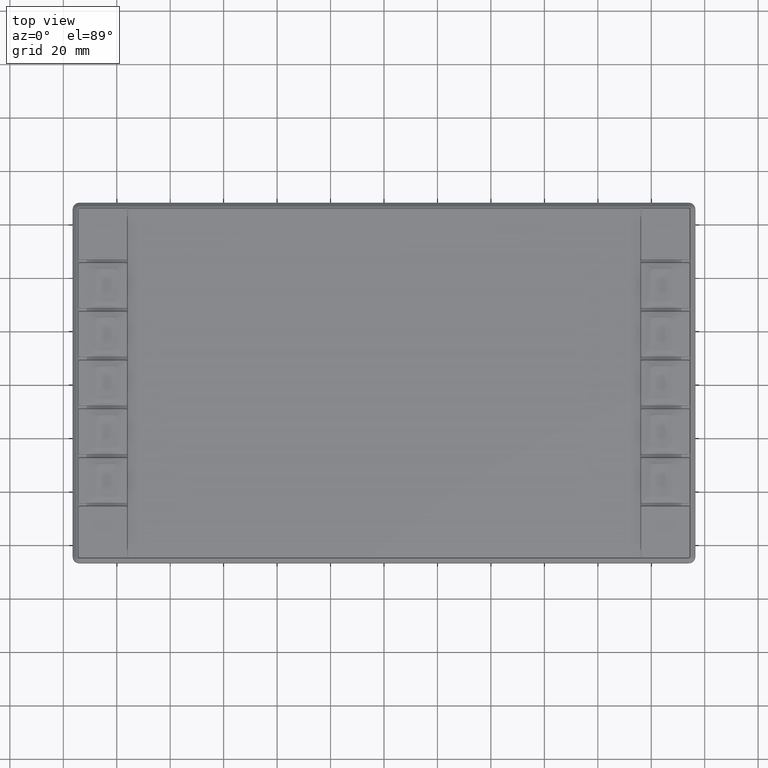
[diagram: clean part render]
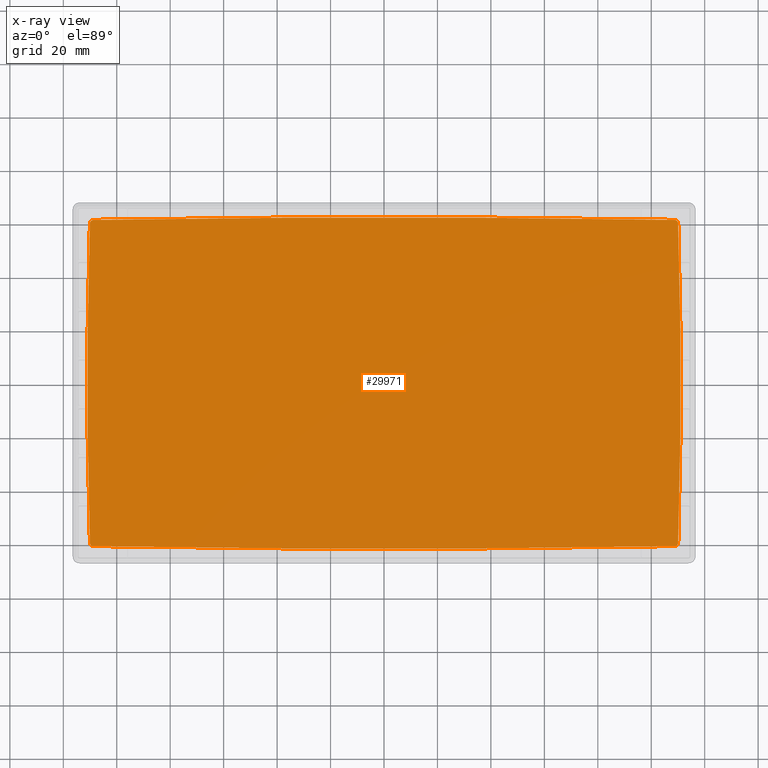
[diagram: x-ray — body ghosted, one internal face saturated and labeled with its STEP entity id]
A machine part, top view, then the same camera in x-ray: the body is ghosted and one INTERNAL B-rep face — a face not visible from any outside direction — is saturated and labeled: STEP entity #29971.
In plain terms, the highlighted planar face has unit normal (0, 0, 1).
Its self-contained STEP definition (entity closure, byte-faithful):
#1877=CIRCLE('',#35961,1921.4999618986);
#1878=CIRCLE('',#35962,6159.9999619214);
#1879=CIRCLE('',#35963,1921.49996189857);
#1880=CIRCLE('',#35964,6159.99996192157);
#8346=PLANE('',#35960);
#12553=ORIENTED_EDGE('',*,*,#19478,.T.);
#12554=ORIENTED_EDGE('',*,*,#19479,.T.);
#12555=ORIENTED_EDGE('',*,*,#19480,.T.);
#12556=ORIENTED_EDGE('',*,*,#19481,.T.);
#12557=ORIENTED_EDGE('',*,*,#19482,.T.);
#12558=ORIENTED_EDGE('',*,*,#19483,.T.);
#12559=ORIENTED_EDGE('',*,*,#19484,.T.);
#12560=ORIENTED_EDGE('',*,*,#19485,.T.);
#19478=EDGE_CURVE('',#23161,#23162,#1877,.F.);
#19479=EDGE_CURVE('',#23162,#23163,#24987,.T.);
#19480=EDGE_CURVE('',#23163,#23164,#1878,.F.);
#19481=EDGE_CURVE('',#23164,#23165,#24988,.T.);
#19482=EDGE_CURVE('',#23165,#23166,#1879,.F.);
#19483=EDGE_CURVE('',#23166,#23167,#24989,.T.);
#19484=EDGE_CURVE('',#23167,#23168,#1880,.F.);
#19485=EDGE_CURVE('',#23168,#23161,#24990,.T.);
#23161=VERTEX_POINT('',#51800);
#23162=VERTEX_POINT('',#51801);
#23163=VERTEX_POINT('',#51807);
#23164=VERTEX_POINT('',#51809);
#23165=VERTEX_POINT('',#51815);
#23166=VERTEX_POINT('',#51817);
#23167=VERTEX_POINT('',#51823);
#23168=VERTEX_POINT('',#51825);
#24987=B_SPLINE_CURVE_WITH_KNOTS('',3,(#51802,#51803,#51804,#51805,#51806),
 .UNSPECIFIED.,.F.,.F.,(4,1,4),(0.00809554462968181,0.00909241375554434,
0.0100892828814069),.UNSPECIFIED.);
#24988=B_SPLINE_CURVE_WITH_KNOTS('',3,(#51810,#51811,#51812,#51813,#51814),
 .UNSPECIFIED.,.F.,.F.,(4,1,4),(0.00809554767599426,0.00909241681708208,
0.0100892859581699),.UNSPECIFIED.);
#24989=B_SPLINE_CURVE_WITH_KNOTS('',3,(#51818,#51819,#51820,#51821,#51822),
 .UNSPECIFIED.,.F.,.F.,(4,1,4),(0.00809554462974763,0.00909241375561033,
0.010089282881473),.UNSPECIFIED.);
#24990=B_SPLINE_CURVE_WITH_KNOTS('',3,(#51826,#51827,#51828,#51829,#51830),
 .UNSPECIFIED.,.F.,.F.,(4,1,4),(0.00809554767600796,0.00909241681709735,
0.0100892859581867),.UNSPECIFIED.);
#25975=EDGE_LOOP('',(#12553,#12554,#12555,#12556,#12557,#12558,#12559,#12560));
#27971=FACE_BOUND('',#25975,.T.);
#29971=ADVANCED_FACE('',(#27971),#8346,.T.);
#35960=AXIS2_PLACEMENT_3D('',#51798,#41321,#41322);
#35961=AXIS2_PLACEMENT_3D('',#51799,#41323,#41324);
#35962=AXIS2_PLACEMENT_3D('',#51808,#41325,#41326);
#35963=AXIS2_PLACEMENT_3D('',#51816,#41327,#41328);
#35964=AXIS2_PLACEMENT_3D('',#51824,#41329,#41330);
#41321=DIRECTION('',(0.,0.,1.));
#41322=DIRECTION('',(1.,0.,0.));
#41323=DIRECTION('',(0.,0.,-1.));
#41324=DIRECTION('',(1.,0.,0.));
#41325=DIRECTION('',(0.,0.,-1.));
#41326=DIRECTION('',(1.,0.,0.));
#41327=DIRECTION('',(0.,0.,-1.));
#41328=DIRECTION('',(1.,0.,0.));
#41329=DIRECTION('',(0.,0.,-1.));
#41330=DIRECTION('',(1.,0.,0.));
#51798=CARTESIAN_POINT('',(0.,0.,-1.7));
#51799=CARTESIAN_POINT('',(1810.49999997698,0.,-1.7));
#51800=CARTESIAN_POINT('',(-110.069829834837,59.7798662298914,-1.70000000000003));
#51801=CARTESIAN_POINT('',(-110.069829831312,-59.779866229782,-1.7));
#51802=CARTESIAN_POINT('',(-110.069829834837,-59.7798662298922,-1.69999999999999));
#51803=CARTESIAN_POINT('',(-110.059470488397,-60.1126851075122,-1.69999999999999));
#51804=CARTESIAN_POINT('',(-109.775985160913,-60.7573732275118,-1.70000000000004));
#51805=CARTESIAN_POINT('',(-109.120951093956,-61.0333865180379,-1.69999999999997));
#51806=CARTESIAN_POINT('',(-108.793467366082,-61.0391711972182,-1.69999999999996));
#51807=CARTESIAN_POINT('',(-108.793467366082,-61.0391711972182,-1.69999999999997));
#51808=CARTESIAN_POINT('',(-1.11022302462516E-12,6098.00000000016,-1.7));
#51809=CARTESIAN_POINT('',(108.793467366065,-61.0391711961205,-1.7));
#51810=CARTESIAN_POINT('',(108.793467366083,-61.0391711972182,-1.69999999999998));
#51811=CARTESIAN_POINT('',(109.126395491889,-61.0332903480828,-1.69999999999998));
#51812=CARTESIAN_POINT('',(109.774839120396,-60.7585039521993,-1.70000000000001));
#51813=CARTESIAN_POINT('',(110.059639895547,-60.1072424960631,-1.70000000000005));
#51814=CARTESIAN_POINT('',(110.069829834837,-59.7798662298916,-1.70000000000005));
#51815=CARTESIAN_POINT('',(110.069829834837,-59.7798662298916,-1.70000000000005));
#51816=CARTESIAN_POINT('',(-1810.49999997696,-3.08780778723872E-13,-1.7));
#51817=CARTESIAN_POINT('',(110.069829831312,59.7798662297821,-1.7));
#51818=CARTESIAN_POINT('',(110.069829834837,59.7798662298916,-1.7));
#51819=CARTESIAN_POINT('',(110.059470488397,60.1126851075115,-1.7));
#51820=CARTESIAN_POINT('',(109.775985160913,60.7573732275121,-1.69999999999997));
#51821=CARTESIAN_POINT('',(109.120951093957,61.0333865180376,-1.69999999999996));
#51822=CARTESIAN_POINT('',(108.793467366083,61.039171197218,-1.69999999999996));
#51823=CARTESIAN_POINT('',(108.793467366083,61.039171197218,-1.69999999999996));
#51824=CARTESIAN_POINT('',(-3.67761376907083E-13,-6098.00000000033,-1.7));
#51825=CARTESIAN_POINT('',(-108.793467366062,61.0391711961196,-1.7));
#51826=CARTESIAN_POINT('',(-108.793467366082,61.039171197218,-1.70000000000001));
#51827=CARTESIAN_POINT('',(-109.126395491889,61.0332903480828,-1.70000000000001));
#51828=CARTESIAN_POINT('',(-109.774839120394,60.7585039522009,-1.6999999999999));
#51829=CARTESIAN_POINT('',(-110.059639895547,60.1072424960633,-1.70000000000003));
#51830=CARTESIAN_POINT('',(-110.069829834837,59.7798662298914,-1.70000000000003));